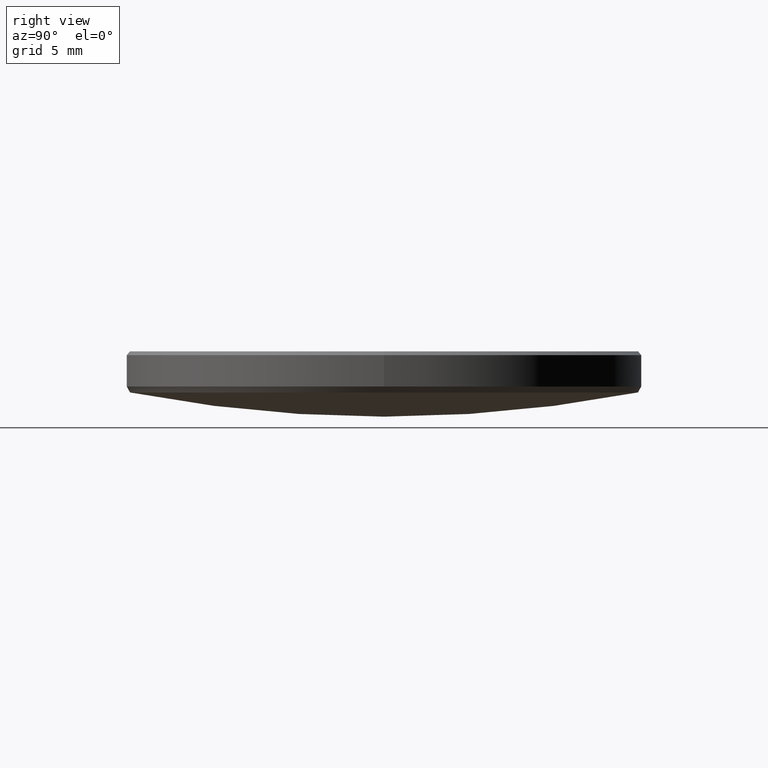
[diagram: clean part render]
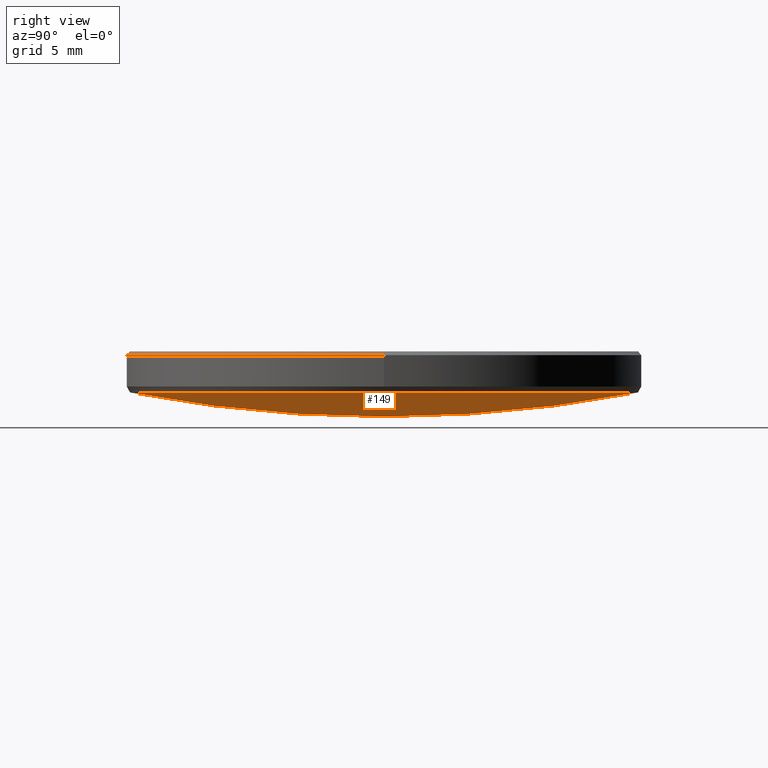
[diagram: same view with one face highlighted and labeled with its STEP entity id]
A machine part, right view. The second image highlights one B-rep face of the part: STEP entity #149.
In plain terms, the highlighted spherical surface has radius 66.15 mm.
Its self-contained STEP definition (entity closure, byte-faithful):
#5 = CARTESIAN_POINT ( 'NONE',  ( 0.000000000000000000, 12.50395849586554675, 3.961956115965656444 ) ) ;
#8 = VERTEX_POINT ( 'NONE', #5 ) ;
#22 = AXIS2_PLACEMENT_3D ( 'NONE', #33, #134, #209 ) ;
#28 = EDGE_CURVE ( 'NONE', #245, #302, #105, .T. ) ;
#33 = CARTESIAN_POINT ( 'NONE',  ( 0.000000000000000000, 0.000000000000000000, 3.961956115965656444 ) ) ;
#47 = AXIS2_PLACEMENT_3D ( 'NONE', #220, #249, #254 ) ;
#49 = ORIENTED_EDGE ( 'NONE', *, *, #28, .T. ) ;
#55 = EDGE_CURVE ( 'NONE', #8, #245, #231, .T. ) ;
#61 = DIRECTION ( 'NONE',  ( 1.000000000000000000, 0.000000000000000000, 0.000000000000000000 ) ) ;
#65 = FACE_OUTER_BOUND ( 'NONE', #317, .T. ) ;
#82 = DIRECTION ( 'NONE',  ( 0.000000000000000000, 0.000000000000000000, -1.000000000000000000 ) ) ;
#85 = AXIS2_PLACEMENT_3D ( 'NONE', #133, #82, #61 ) ;
#89 = CARTESIAN_POINT ( 'NONE',  ( 0.000000000000000000, 0.000000000000000000, 68.91943083545942272 ) ) ;
#92 = EDGE_CURVE ( 'NONE', #94, #302, #95, .T. ) ;
#94 = VERTEX_POINT ( 'NONE', #224 ) ;
#95 = CIRCLE ( 'NONE', #47, 66.15000000000000568 ) ;
#98 = ORIENTED_EDGE ( 'NONE', *, *, #92, .F. ) ;
#103 = EDGE_CURVE ( 'NONE', #94, #8, #283, .T. ) ;
#105 = CIRCLE ( 'NONE', #22, 12.50395849586555030 ) ;
#114 = DIRECTION ( 'NONE',  ( -1.000000000000000000, 0.000000000000000000, 0.000000000000000000 ) ) ;
#133 = CARTESIAN_POINT ( 'NONE',  ( 0.000000000000000000, 0.000000000000000000, 3.961956115965656444 ) ) ;
#134 = DIRECTION ( 'NONE',  ( 0.000000000000000000, 0.000000000000000000, -1.000000000000000000 ) ) ;
#145 = AXIS2_PLACEMENT_3D ( 'NONE', #89, #114, #189 ) ;
#146 = DIRECTION ( 'NONE',  ( 0.000000000000000000, 0.000000000000000000, -1.000000000000000000 ) ) ;
#149 = ADVANCED_FACE ( 'NONE', ( #65 ), #165, .T. ) ;
#165 = SPHERICAL_SURFACE ( 'NONE', #145, 66.15000000000000568 ) ;
#174 = DIRECTION ( 'NONE',  ( 1.000000000000000000, -0.000000000000000000, 0.000000000000000000 ) ) ;
#182 = AXIS2_PLACEMENT_3D ( 'NONE', #305, #174, #146 ) ;
#189 = DIRECTION ( 'NONE',  ( 0.000000000000000000, 1.000000000000000000, 0.000000000000000000 ) ) ;
#209 = DIRECTION ( 'NONE',  ( 1.000000000000000000, 0.000000000000000000, 0.000000000000000000 ) ) ;
#220 = CARTESIAN_POINT ( 'NONE',  ( 0.000000000000000000, 0.000000000000000000, 68.91943083545942272 ) ) ;
#224 = CARTESIAN_POINT ( 'NONE',  ( 0.000000000000000000, 4.050519288179870232E-15, 2.769430835459427254 ) ) ;
#231 = CIRCLE ( 'NONE', #85, 12.50395849586555030 ) ;
#245 = VERTEX_POINT ( 'NONE', #309 ) ;
#249 = DIRECTION ( 'NONE',  ( -1.000000000000000000, 1.224646799147353207E-16, 0.000000000000000000 ) ) ;
#254 = DIRECTION ( 'NONE',  ( -1.224646799147352961E-16, -1.000000000000000000, 0.000000000000000000 ) ) ;
#266 = CARTESIAN_POINT ( 'NONE',  ( -1.531293274863309419E-15, -12.50395849586554675, 3.961956115965656444 ) ) ;
#275 = ORIENTED_EDGE ( 'NONE', *, *, #55, .T. ) ;
#283 = CIRCLE ( 'NONE', #182, 66.15000000000000568 ) ;
#302 = VERTEX_POINT ( 'NONE', #266 ) ;
#305 = CARTESIAN_POINT ( 'NONE',  ( 0.000000000000000000, 0.000000000000000000, 68.91943083545942272 ) ) ;
#306 = ORIENTED_EDGE ( 'NONE', *, *, #103, .T. ) ;
#309 = CARTESIAN_POINT ( 'NONE',  ( 12.50395849586555030, 0.000000000000000000, 3.961956115965656444 ) ) ;
#317 = EDGE_LOOP ( 'NONE', ( #98, #306, #275, #49 ) ) ;